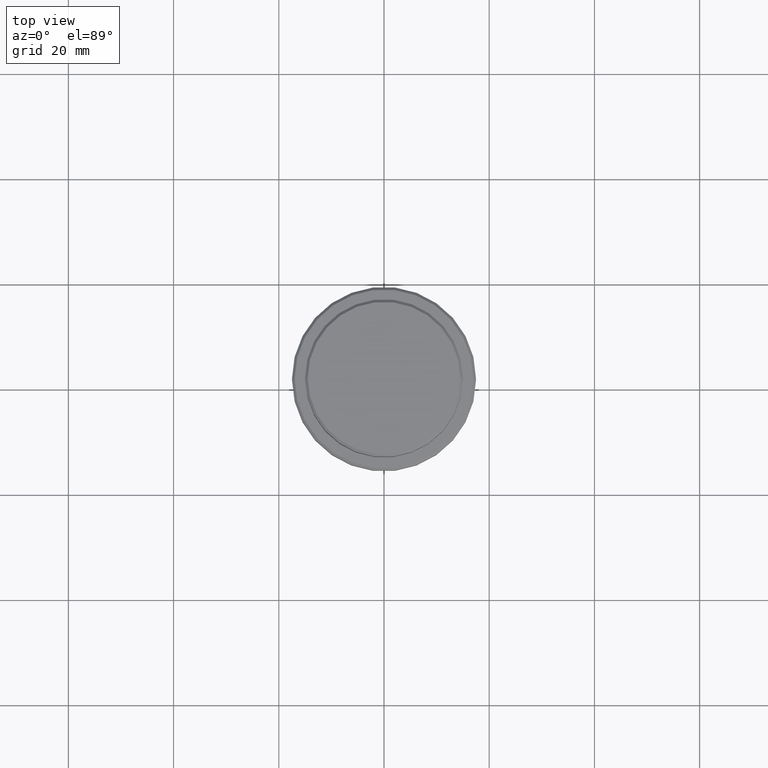
[diagram: clean part render]
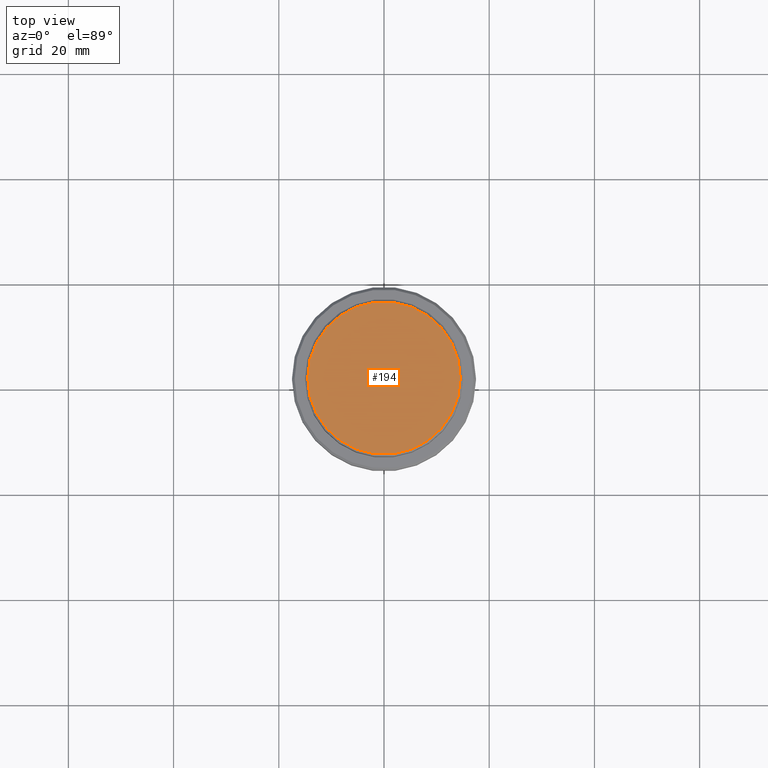
[diagram: same view with one face highlighted and labeled with its STEP entity id]
A machine part, top view. The second image highlights one B-rep face of the part: STEP entity #194.
In plain terms, the highlighted planar face has unit normal (0, -0, 1).
Its self-contained STEP definition (entity closure, byte-faithful):
#70 = VERTEX_POINT ( 'NONE', #217 ) ;
#125 = DIRECTION ( 'NONE',  ( 0.000000000000000000, -0.000000000000000000, 1.000000000000000000 ) ) ;
#140 = CARTESIAN_POINT ( 'NONE',  ( 0.000000000000000000, 0.000000000000000000, 0.000000000000000000 ) ) ;
#156 = CIRCLE ( 'NONE', #338, 14.49999999999996980 ) ;
#171 = VERTEX_POINT ( 'NONE', #1340 ) ;
#194 = ADVANCED_FACE ( 'NONE', ( #382 ), #1102, .T. ) ;
#217 = CARTESIAN_POINT ( 'NONE',  ( -14.49999999999996980, 0.000000000000000000, 0.000000000000000000 ) ) ;
#243 = DIRECTION ( 'NONE',  ( 1.000000000000000000, 0.000000000000000000, 0.000000000000000000 ) ) ;
#271 = AXIS2_PLACEMENT_3D ( 'NONE', #140, #125, #243 ) ;
#338 = AXIS2_PLACEMENT_3D ( 'NONE', #400, #1270, #837 ) ;
#359 = EDGE_LOOP ( 'NONE', ( #1039, #767 ) ) ;
#382 = FACE_OUTER_BOUND ( 'NONE', #359, .T. ) ;
#400 = CARTESIAN_POINT ( 'NONE',  ( 0.000000000000000000, 0.000000000000000000, 0.000000000000000000 ) ) ;
#500 = CARTESIAN_POINT ( 'NONE',  ( 0.000000000000000000, 0.000000000000000000, 0.000000000000000000 ) ) ;
#606 = DIRECTION ( 'NONE',  ( 1.000000000000000000, 0.000000000000000000, 0.000000000000000000 ) ) ;
#623 = DIRECTION ( 'NONE',  ( -0.000000000000000000, -0.000000000000000000, 1.000000000000000000 ) ) ;
#749 = AXIS2_PLACEMENT_3D ( 'NONE', #500, #623, #606 ) ;
#760 = EDGE_CURVE ( 'NONE', #70, #171, #156, .T. ) ;
#767 = ORIENTED_EDGE ( 'NONE', *, *, #1179, .T. ) ;
#837 = DIRECTION ( 'NONE',  ( 1.000000000000000000, 0.000000000000000000, 0.000000000000000000 ) ) ;
#1039 = ORIENTED_EDGE ( 'NONE', *, *, #760, .T. ) ;
#1102 = PLANE ( 'NONE',  #271 ) ;
#1161 = CIRCLE ( 'NONE', #749, 14.49999999999996980 ) ;
#1179 = EDGE_CURVE ( 'NONE', #171, #70, #1161, .T. ) ;
#1270 = DIRECTION ( 'NONE',  ( -0.000000000000000000, -0.000000000000000000, 1.000000000000000000 ) ) ;
#1340 = CARTESIAN_POINT ( 'NONE',  ( 14.49999999999996980, 1.806354028742344224E-15, 0.000000000000000000 ) ) ;